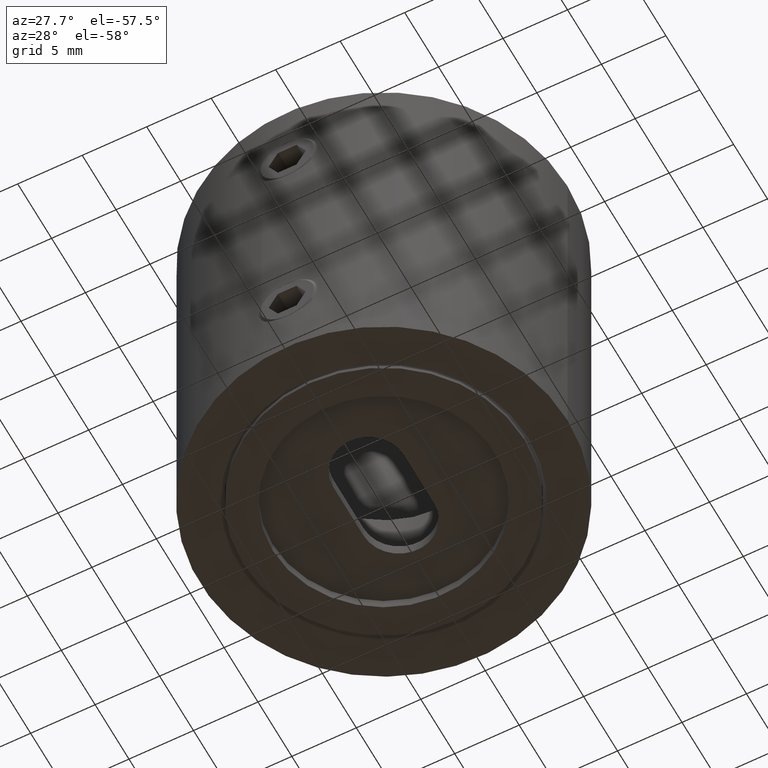
[diagram: clean part render]
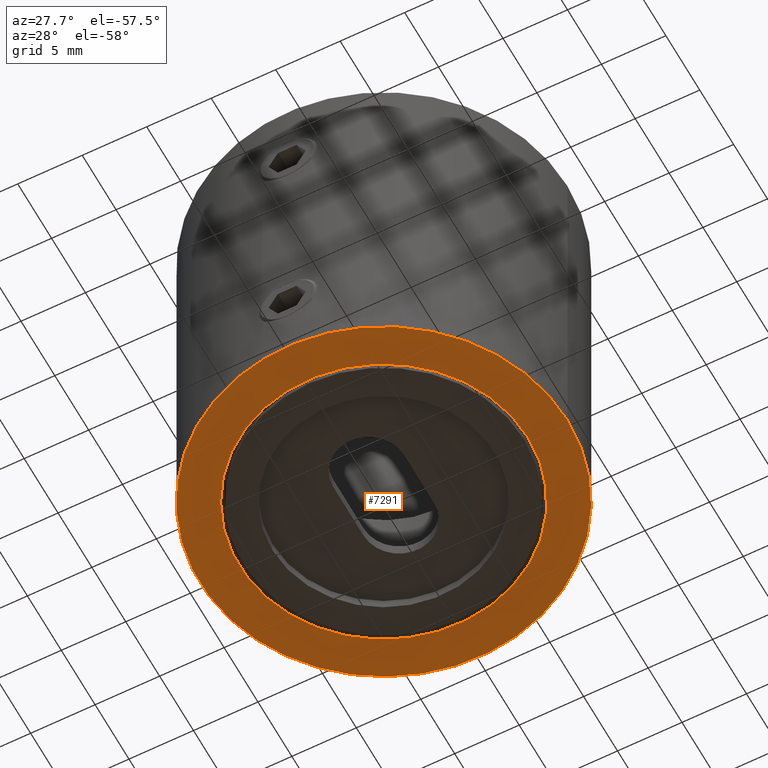
[diagram: same view with one face highlighted and labeled with its STEP entity id]
A machine part, auxiliary view. The second image highlights one B-rep face of the part: STEP entity #7291.
In plain terms, the highlighted planar face has unit normal (0, 0, 1).
Its self-contained STEP definition (entity closure, byte-faithful):
#918 = AXIS2_PLACEMENT_3D ( 'NONE', #8802, #11202, #4061 ) ;
#1163 = EDGE_CURVE ( 'NONE', #5799, #5799, #2877, .T. ) ;
#1289 = AXIS2_PLACEMENT_3D ( 'NONE', #13376, #14648, #9888 ) ;
#1304 = VERTEX_POINT ( 'NONE', #5561 ) ;
#1657 = PLANE ( 'NONE',  #918 ) ;
#2005 = FACE_BOUND ( 'NONE', #11096, .T. ) ;
#2039 = EDGE_CURVE ( 'NONE', #1304, #1304, #11481, .T. ) ;
#2877 = CIRCLE ( 'NONE', #1289, 14.25000000000000000 ) ;
#3151 = CARTESIAN_POINT ( 'NONE',  ( 0.000000000000000000, 0.000000000000000000, 0.000000000000000000 ) ) ;
#3549 = ORIENTED_EDGE ( 'NONE', *, *, #1163, .F. ) ;
#4061 = DIRECTION ( 'NONE',  ( 1.000000000000000000, 0.000000000000000000, -0.000000000000000000 ) ) ;
#5561 = CARTESIAN_POINT ( 'NONE',  ( 11.19999999999999396, 0.000000000000000000, 0.000000000000000000 ) ) ;
#5799 = VERTEX_POINT ( 'NONE', #15102 ) ;
#6631 = DIRECTION ( 'NONE',  ( 1.000000000000000000, 0.000000000000000000, 0.000000000000000000 ) ) ;
#7291 = ADVANCED_FACE ( 'NONE', ( #2005, #14347 ), #1657, .F. ) ;
#7750 = AXIS2_PLACEMENT_3D ( 'NONE', #3151, #14966, #6631 ) ;
#8802 = CARTESIAN_POINT ( 'NONE',  ( 0.000000000000000000, 0.000000000000000000, 0.000000000000000000 ) ) ;
#9620 = EDGE_LOOP ( 'NONE', ( #3549 ) ) ;
#9888 = DIRECTION ( 'NONE',  ( 1.000000000000000000, 0.000000000000000000, 0.000000000000000000 ) ) ;
#11096 = EDGE_LOOP ( 'NONE', ( #13163 ) ) ;
#11202 = DIRECTION ( 'NONE',  ( 0.000000000000000000, 0.000000000000000000, 1.000000000000000000 ) ) ;
#11481 = CIRCLE ( 'NONE', #7750, 11.19999999999999396 ) ;
#13163 = ORIENTED_EDGE ( 'NONE', *, *, #2039, .T. ) ;
#13376 = CARTESIAN_POINT ( 'NONE',  ( 0.000000000000000000, 0.000000000000000000, 0.000000000000000000 ) ) ;
#14347 = FACE_OUTER_BOUND ( 'NONE', #9620, .T. ) ;
#14648 = DIRECTION ( 'NONE',  ( 0.000000000000000000, 0.000000000000000000, 1.000000000000000000 ) ) ;
#14966 = DIRECTION ( 'NONE',  ( 0.000000000000000000, 0.000000000000000000, 1.000000000000000000 ) ) ;
#15102 = CARTESIAN_POINT ( 'NONE',  ( 14.25000000000000000, 0.000000000000000000, 0.000000000000000000 ) ) ;